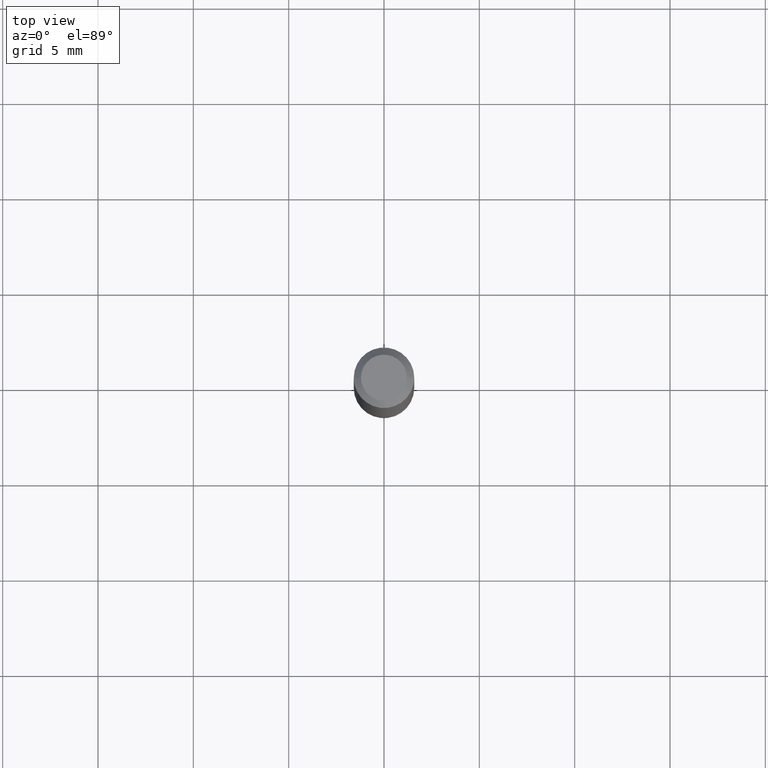
[diagram: clean part render]
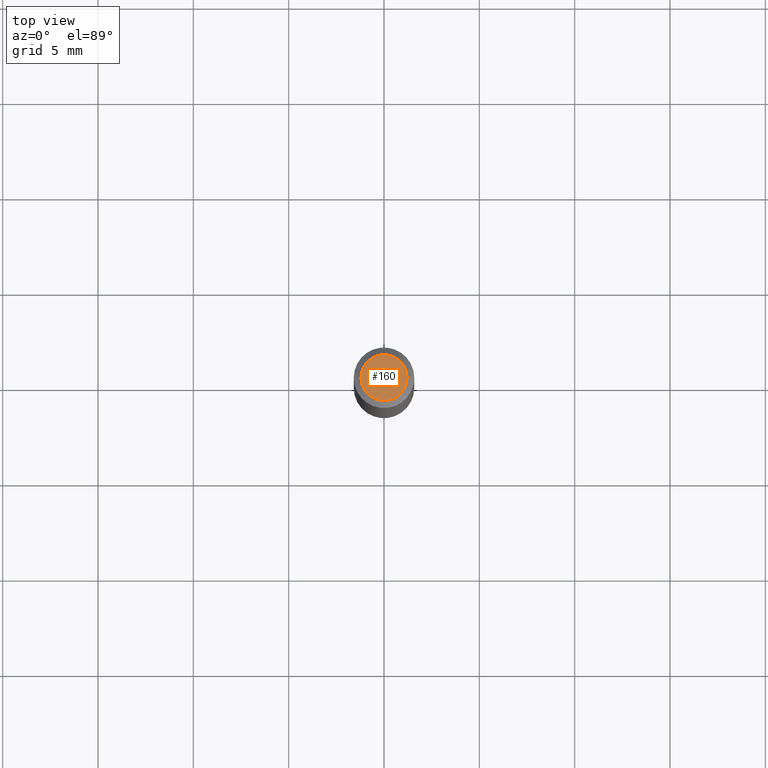
[diagram: same view with one face highlighted and labeled with its STEP entity id]
A machine part, top view. The second image highlights one B-rep face of the part: STEP entity #160.
In plain terms, the highlighted planar face has unit normal (0, -0, -1).
Its self-contained STEP definition (entity closure, byte-faithful):
#31 = DIRECTION ( 'NONE',  ( -2.445468806185136597E-29, 3.491481338843145583E-15, 1.000000000000000000 ) ) ;
#46 = EDGE_LOOP ( 'NONE', ( #433, #379 ) ) ;
#76 = AXIS2_PLACEMENT_3D ( 'NONE', #282, #236, #370 ) ;
#83 = DIRECTION ( 'NONE',  ( -2.445468806185136597E-29, 3.491481338843145583E-15, 1.000000000000000000 ) ) ;
#87 = CARTESIAN_POINT ( 'NONE',  ( -2.284261553135908873E-45, 3.261320105837856889E-31, 9.340792028745169707E-17 ) ) ;
#103 = EDGE_CURVE ( 'NONE', #339, #252, #255, .T. ) ;
#144 = AXIS2_PLACEMENT_3D ( 'NONE', #87, #31, #316 ) ;
#155 = CARTESIAN_POINT ( 'NONE',  ( -0.04749999999999999362, 3.578768372314211985E-16, 9.340792028744928118E-17 ) ) ;
#160 = ADVANCED_FACE ( 'NONE', ( #423 ), #417, .F. ) ;
#191 = CARTESIAN_POINT ( 'NONE',  ( 0.04749999999999999362, -4.035134999187576651E-16, 9.340792028745427319E-17 ) ) ;
#213 = CIRCLE ( 'NONE', #387, 0.04749999999999999362 ) ;
#227 = DIRECTION ( 'NONE',  ( 1.000000000000000000, -6.982962677686267499E-15, 4.884662768193073002E-29 ) ) ;
#236 = DIRECTION ( 'NONE',  ( 2.438088387897960049E-29, -3.491481338843145188E-15, -1.000000000000000000 ) ) ;
#252 = VERTEX_POINT ( 'NONE', #191 ) ;
#255 = CIRCLE ( 'NONE', #144, 0.04749999999999999362 ) ;
#282 = CARTESIAN_POINT ( 'NONE',  ( 3.316907271900976096E-16, 0.04749999999999999362, -1.191414034513235726E-16 ) ) ;
#316 = DIRECTION ( 'NONE',  ( 1.000000000000000000, -6.982962677686267499E-15, 4.884662768193073002E-29 ) ) ;
#339 = VERTEX_POINT ( 'NONE', #155 ) ;
#365 = CARTESIAN_POINT ( 'NONE',  ( -2.284261553135908873E-45, 3.261320105837856889E-31, 9.340792028745169707E-17 ) ) ;
#370 = DIRECTION ( 'NONE',  ( -1.000000000000000000, 6.982962677686265922E-15, -4.876176775795935793E-29 ) ) ;
#379 = ORIENTED_EDGE ( 'NONE', *, *, #385, .T. ) ;
#385 = EDGE_CURVE ( 'NONE', #252, #339, #213, .T. ) ;
#387 = AXIS2_PLACEMENT_3D ( 'NONE', #365, #83, #227 ) ;
#417 = PLANE ( 'NONE',  #76 ) ;
#423 = FACE_OUTER_BOUND ( 'NONE', #46, .T. ) ;
#433 = ORIENTED_EDGE ( 'NONE', *, *, #103, .T. ) ;